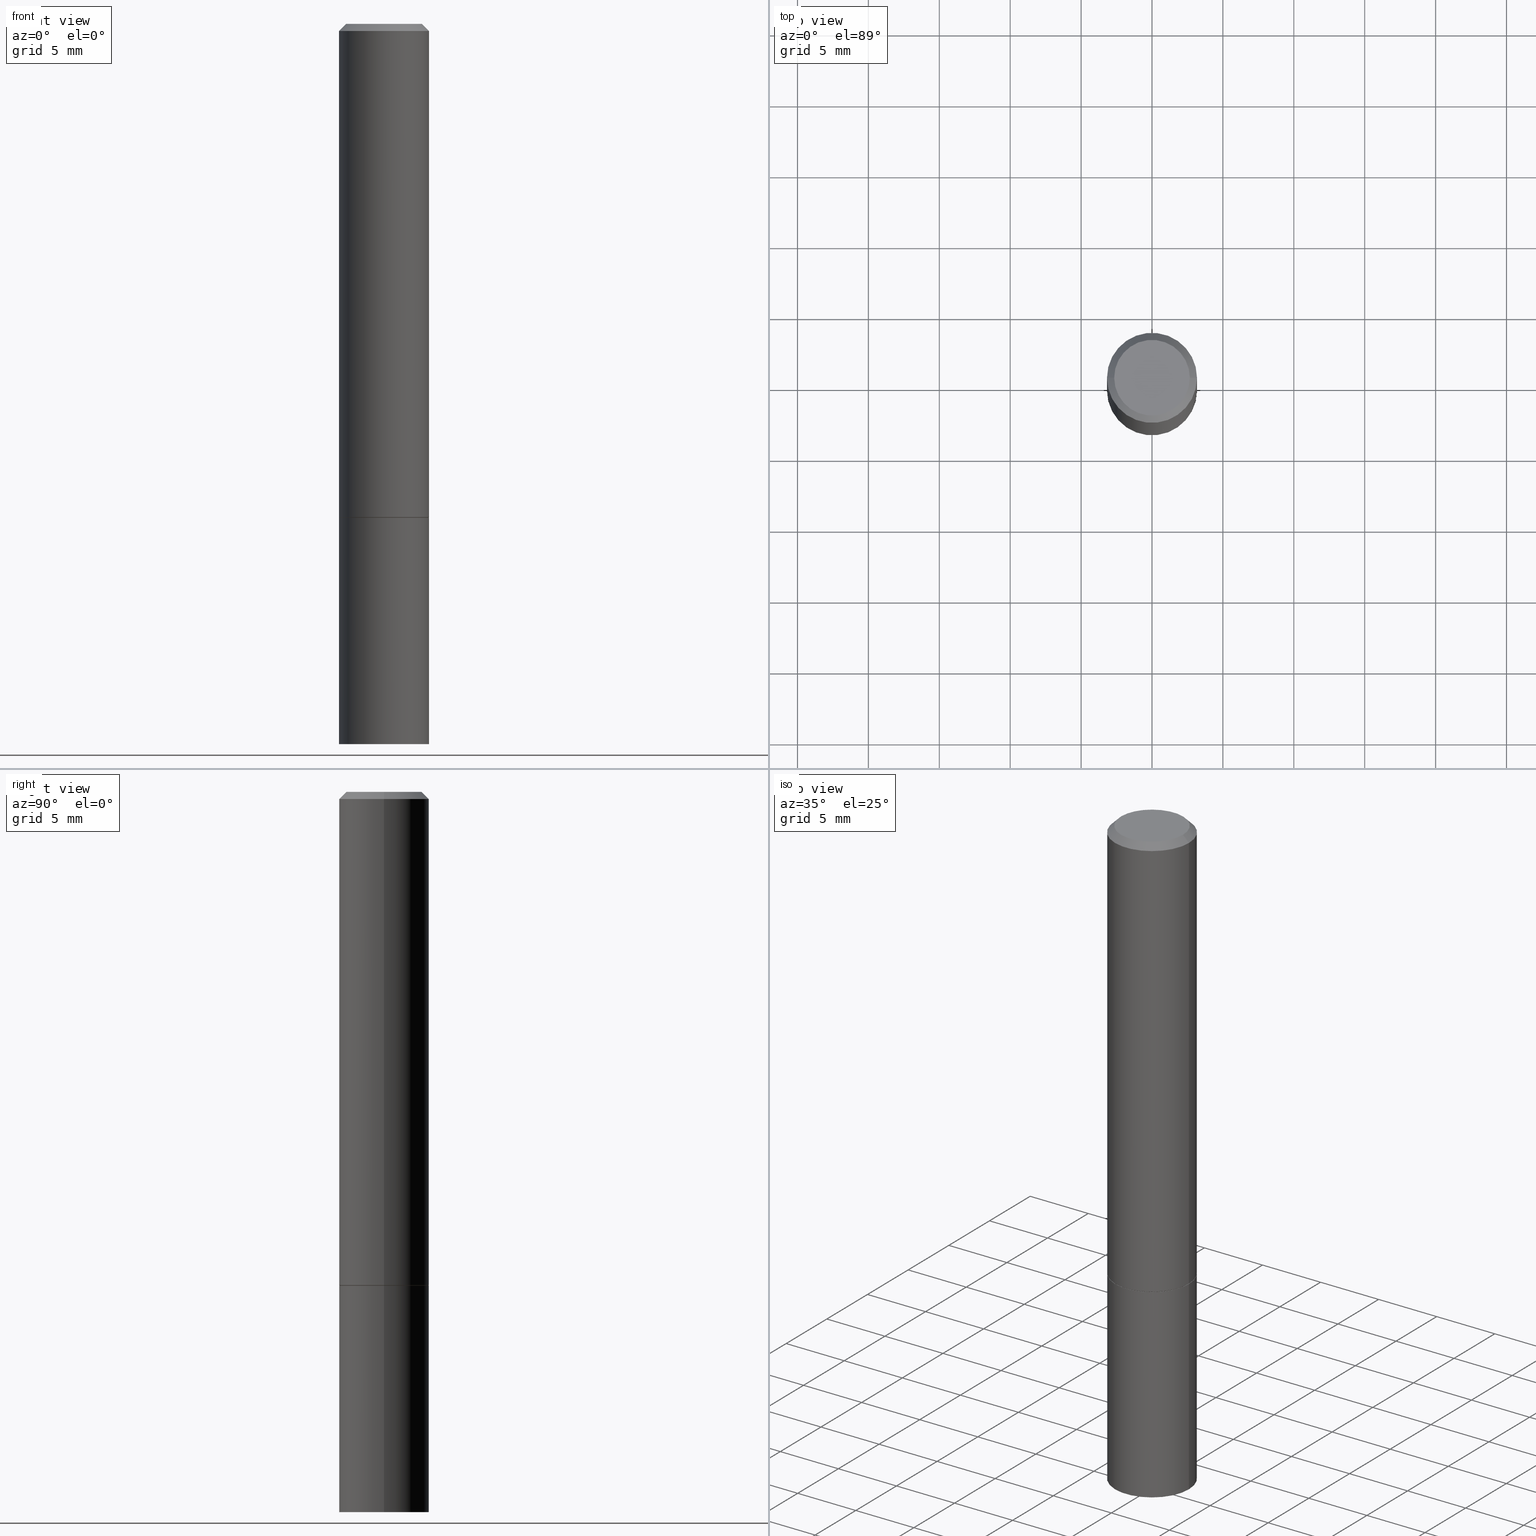
[diagram: canonical four-view strip — front | top / right | iso, engineering-drawing reading convention]
A machine part, canonical four-view strip (front | top / right | iso — engineering-drawing reading convention). The complete STEP part file that produces these views, byte-faithful:
ISO-10303-21;
HEADER;
FILE_DESCRIPTION (( 'STEP AP203' ),
    '1' );
FILE_NAME ('32674.STEP',
    '2022-04-27T15:46:56',
    ( '' ),
    ( '' ),
    'SwSTEP 2.0',
    'SolidWorks 2022',
    '' );
FILE_SCHEMA (( 'CONFIG_CONTROL_DESIGN' ));
ENDSEC;

DATA;
#1 = ADVANCED_FACE ( 'NONE', ( #67 ), #182, .F. ) ;
#2 =( CONVERSION_BASED_UNIT ( 'INCH', #279 ) LENGTH_UNIT ( ) NAMED_UNIT ( #219 ) );
#3 = ADVANCED_FACE ( 'NONE', ( #267 ), #346, .T. ) ;
#4 = LINE ( 'NONE', #251, #212 ) ;
#5 = LOCAL_TIME ( 11, 46, 56.00000000000000000, #9 ) ;
#6 = DATE_TIME_ROLE ( 'creation_date' ) ;
#7 = DIRECTION ( 'NONE',  ( 2.438088387897960049E-29, -3.491481338843145188E-15, -1.000000000000000000 ) ) ;
#8 = CARTESIAN_POINT ( 'NONE',  ( 3.350292264473637048E-29, -4.783329434215109105E-15, -1.369999999999999885 ) ) ;
#9 = COORDINATED_UNIVERSAL_TIME_OFFSET ( 5, 0, .BEHIND. ) ;
#10 = ORIENTED_EDGE ( 'NONE', *, *, #92, .T. ) ;
#11 = DIRECTION ( 'NONE',  ( 1.000000000000000000, -6.982962677686270655E-15, 0.000000000000000000 ) ) ;
#12 = DATE_AND_TIME ( #177, #43 ) ;
#13 = VERTEX_POINT ( 'NONE', #61 ) ;
#14 = CIRCLE ( 'NONE', #130, 0.1049999999999998296 ) ;
#15 = AXIS2_PLACEMENT_3D ( 'NONE', #286, #103, #106 ) ;
#16 = ADVANCED_FACE ( 'NONE', ( #153 ), #256, .T. ) ;
#17 = DIRECTION ( 'NONE',  ( 1.000000000000000000, -6.982962677686270655E-15, 0.000000000000000000 ) ) ;
#18 = CC_DESIGN_DATE_AND_TIME_ASSIGNMENT ( #308, #135, ( #163 ) ) ;
#19 = CARTESIAN_POINT ( 'NONE',  ( 0.1250000000000006661, -7.840524927407736555E-15, -2.000000000000000000 ) ) ;
#20 = PRODUCT_DEFINITION_FORMATION_WITH_SPECIFIED_SOURCE ( 'ANY', '', #74, .NOT_KNOWN. ) ;
#21 = CIRCLE ( 'NONE', #283, 0.1250000000000000000 ) ;
#22 = FACE_OUTER_BOUND ( 'NONE', #91, .T. ) ;
#23 = ORIENTED_EDGE ( 'NONE', *, *, #322, .T. ) ;
#24 = UNCERTAINTY_MEASURE_WITH_UNIT (LENGTH_MEASURE( 1.000000000000000082E-05 ), #2, 'distance_accuracy_value', 'NONE');
#25 = EDGE_CURVE ( 'NONE', #173, #191, #95, .T. ) ;
#26 = CARTESIAN_POINT ( 'NONE',  ( 4.885835609456701419E-29, -6.975009967166883090E-15, -1.997818116883973705 ) ) ;
#27 = ORIENTED_EDGE ( 'NONE', *, *, #322, .F. ) ;
#28 = DIRECTION ( 'NONE',  ( -2.445468806185136597E-29, 3.491481338843145583E-15, 1.000000000000000000 ) ) ;
#29 = CARTESIAN_POINT ( 'NONE',  ( 8.728703347108166682E-16, 0.1249999999999952122, -1.371000000000000441 ) ) ;
#30 = ORIENTED_EDGE ( 'NONE', *, *, #269, .F. ) ;
#31 = CARTESIAN_POINT ( 'NONE',  ( 4.890937612370273194E-29, -6.982962677686291165E-15, -2.000000000000000000 ) ) ;
#32 = DIRECTION ( 'NONE',  ( 0.7071067811865469066, -7.319954787623254468E-15, -0.7071067811865481278 ) ) ;
#33 = DIRECTION ( 'NONE',  ( 1.000000000000000000, -6.982962677686270655E-15, 0.000000000000000000 ) ) ;
#34 =( NAMED_UNIT ( * ) PLANE_ANGLE_UNIT ( ) SI_UNIT ( $, .RADIAN. ) );
#35 = ORIENTED_EDGE ( 'NONE', *, *, #68, .F. ) ;
#36 = CARTESIAN_POINT ( 'NONE',  ( 0.000000000000000000, 0.000000000000000000, 0.000000000000000000 ) ) ;
#37 = EDGE_CURVE ( 'NONE', #148, #221, #339, .T. ) ;
#38 = APPROVAL_PERSON_ORGANIZATION ( #42, #278, #257 ) ;
#39 = AXIS2_PLACEMENT_3D ( 'NONE', #319, #57, #186 ) ;
#40 = EDGE_CURVE ( 'NONE', #117, #191, #370, .T. ) ;
#41 = FACE_OUTER_BOUND ( 'NONE', #239, .T. ) ;
#42 = PERSON_AND_ORGANIZATION ( #75, #201 ) ;
#43 = LOCAL_TIME ( 11, 46, 56.00000000000000000, #307 ) ;
#44 = DIRECTION ( 'NONE',  ( 1.000000000000000000, -6.982962677686266711E-15, 4.876176775795935793E-29 ) ) ;
#45 = ORIENTED_EDGE ( 'NONE', *, *, #326, .T. ) ;
#46 = LINE ( 'NONE', #51, #56 ) ;
#47 = CALENDAR_DATE ( 2022, 27, 4 ) ;
#48 = ORIENTED_EDGE ( 'NONE', *, *, #260, .T. ) ;
#49 = ADVANCED_FACE ( 'NONE', ( #181 ), #105, .F. ) ;
#50 = EDGE_LOOP ( 'NONE', ( #237, #373 ) ) ;
#51 = CARTESIAN_POINT ( 'NONE',  ( 0.1239999999999999991, -5.652708287587050226E-15, -1.370999999999999996 ) ) ;
#52 = ADVANCED_FACE ( 'NONE', ( #22 ), #121, .T. ) ;
#53 = ORIENTED_EDGE ( 'NONE', *, *, #40, .T. ) ;
#54 = CONICAL_SURFACE ( 'NONE', #276, 0.1239999999999999991, 0.7853981633974141952 ) ;
#55 = CC_DESIGN_SECURITY_CLASSIFICATION ( #163, ( #20 ) ) ;
#56 = VECTOR ( 'NONE', #176, 39.37007874015748854 ) ;
#57 = DIRECTION ( 'NONE',  ( 2.445468806185136597E-29, -3.491481338843145583E-15, -1.000000000000000000 ) ) ;
#58 = DIRECTION ( 'NONE',  ( -2.438088387897960049E-29, 3.491481338843145188E-15, 1.000000000000000000 ) ) ;
#59 = CARTESIAN_POINT ( 'NONE',  ( 3.352737733279822090E-29, -4.786820915553952901E-15, -1.370999999999999996 ) ) ;
#60 = DIRECTION ( 'NONE',  ( -2.445468806185136597E-29, 3.491481338843145583E-15, 1.000000000000000000 ) ) ;
#61 = CARTESIAN_POINT ( 'NONE',  ( -0.1250000000000000000, -4.996713376919996012E-15, -1.370999999999999996 ) ) ;
#62 = CARTESIAN_POINT ( 'NONE',  ( 0.1250000000000000000, -5.656199768925892444E-15, -1.369999999999999885 ) ) ;
#63 = DIRECTION ( 'NONE',  ( 2.438088387897960049E-29, -3.491481338843145188E-15, -1.000000000000000000 ) ) ;
#64 = ORIENTED_EDGE ( 'NONE', *, *, #213, .F. ) ;
#65 = DIRECTION ( 'NONE',  ( -0.7071067811865469066, 2.468850131082250355E-15, -0.7071067811865481278 ) ) ;
#66 = CC_DESIGN_APPROVAL ( #224, ( #20 ) ) ;
#67 = FACE_OUTER_BOUND ( 'NONE', #50, .T. ) ;
#68 = EDGE_CURVE ( 'NONE', #86, #117, #190, .T. ) ;
#69 = CC_DESIGN_PERSON_AND_ORGANIZATION_ASSIGNMENT ( #310, #172, ( #163 ) ) ;
#70 = AXIS2_PLACEMENT_3D ( 'NONE', #362, #379, #324 ) ;
#71 = CARTESIAN_POINT ( 'NONE',  ( -0.1250000000000000000, 8.881784197001252323E-16, -6.148668862818632227E-30 ) ) ;
#72 = CC_DESIGN_DATE_AND_TIME_ASSIGNMENT ( #83, #6, ( #138 ) ) ;
#73 = CIRCLE ( 'NONE', #167, 0.1250000000000000000 ) ;
#74 = PRODUCT ( '32674', '32674', '', ( #137 ) ) ;
#75 = PERSON ( 'UNSPECIFIED', 'UNSPECIFIED', 'UNSPECIFIED', ('UNSPECIFIED'), ('UNSPECIFIED'), ('UNSPECIFIED') ) ;
#76 = COORDINATED_UNIVERSAL_TIME_OFFSET ( 5, 0, .BEHIND. ) ;
#77 =( LENGTH_UNIT ( ) NAMED_UNIT ( * ) SI_UNIT ( $, .METRE. ) );
#78 = PERSON_AND_ORGANIZATION_ROLE ( 'creator' ) ;
#79 = DIRECTION ( 'NONE',  ( 0.000000000000000000, 0.000000000000000000, 1.000000000000000000 ) ) ;
#80 = ORIENTED_EDGE ( 'NONE', *, *, #92, .F. ) ;
#81 = MANIFOLD_SOLID_BREP ( 'Body-Move/Copy2[1]', #129 ) ;
#82 = DIRECTION ( 'NONE',  ( -2.445468806185136597E-29, 3.491481338843145583E-15, 1.000000000000000000 ) ) ;
#83 = DATE_AND_TIME ( #226, #389 ) ;
#84 = CC_DESIGN_PERSON_AND_ORGANIZATION_ASSIGNMENT ( #372, #250, ( #20 ) ) ;
#85 = PERSON_AND_ORGANIZATION ( #75, #201 ) ;
#86 = VERTEX_POINT ( 'NONE', #295 ) ;
#87 = DIRECTION ( 'NONE',  ( 1.000000000000000000, -6.982962677686270655E-15, 0.000000000000000000 ) ) ;
#88 = EDGE_LOOP ( 'NONE', ( #10, #316 ) ) ;
#89 = AXIS2_PLACEMENT_3D ( 'NONE', #114, #60, #87 ) ;
#90 = CARTESIAN_POINT ( 'NONE',  ( 3.352737733279822090E-29, -4.786820915553952901E-15, -1.370999999999999996 ) ) ;
#91 = EDGE_LOOP ( 'NONE', ( #45, #48, #80, #378 ) ) ;
#92 = EDGE_CURVE ( 'NONE', #126, #13, #140, .T. ) ;
#93 = LINE ( 'NONE', #301, #317 ) ;
#94 = DIRECTION ( 'NONE',  ( 1.000000000000000000, -6.982962677686266711E-15, 4.876176775795935793E-29 ) ) ;
#95 = LINE ( 'NONE', #218, #277 ) ;
#96 = DIRECTION ( 'NONE',  ( 1.000000000000000000, -6.982962677686266711E-15, 4.876176775795935793E-29 ) ) ;
#97 = ORIENTED_EDGE ( 'NONE', *, *, #260, .F. ) ;
#98 = CC_DESIGN_APPROVAL ( #278, ( #138 ) ) ;
#99 = DIRECTION ( 'NONE',  ( 2.445468806185136597E-29, -3.491481338843145583E-15, -1.000000000000000000 ) ) ;
#100 = CIRCLE ( 'NONE', #332, 0.1249999999999998335 ) ;
#101 = EDGE_CURVE ( 'NONE', #145, #126, #377, .T. ) ;
#102 = VECTOR ( 'NONE', #262, 39.37007874015748143 ) ;
#103 = DIRECTION ( 'NONE',  ( -2.445468806185136597E-29, 3.491481338843145583E-15, 1.000000000000000000 ) ) ;
#104 = CALENDAR_DATE ( 2022, 27, 4 ) ;
#105 = CONICAL_SURFACE ( 'NONE', #164, 2255.510300424507022, 1.553343034274960344 ) ;
#106 = DIRECTION ( 'NONE',  ( 1.000000000000000000, -6.982962677686270655E-15, 0.000000000000000000 ) ) ;
#107 = ADVANCED_FACE ( 'NONE', ( #354 ), #361, .F. ) ;
#108 = DIRECTION ( 'NONE',  ( -2.445468806185136597E-29, 3.491481338843145583E-15, 1.000000000000000000 ) ) ;
#109 = DATE_AND_TIME ( #131, #146 ) ;
#110 = CARTESIAN_POINT ( 'NONE',  ( 4.890937612370273194E-29, -6.982962677686291165E-15, -2.000000000000000000 ) ) ;
#111 = CARTESIAN_POINT ( 'NONE',  ( 0.000000000000000000, 0.000000000000000000, 0.000000000000000000 ) ) ;
#112 = AXIS2_PLACEMENT_3D ( 'NONE', #31, #325, #127 ) ;
#113 = DIRECTION ( 'NONE',  ( -2.445468806185136597E-29, 3.491481338843145583E-15, 1.000000000000000000 ) ) ;
#114 = CARTESIAN_POINT ( 'NONE',  ( 3.352737733279822090E-29, -4.786820915553952901E-15, -1.370999999999999996 ) ) ;
#115 = ORIENTED_EDGE ( 'NONE', *, *, #149, .F. ) ;
#116 = ADVANCED_FACE ( 'NONE', ( #210 ), #120, .T. ) ;
#117 = VERTEX_POINT ( 'NONE', #291 ) ;
#118 =( GEOMETRIC_REPRESENTATION_CONTEXT ( 3 ) GLOBAL_UNCERTAINTY_ASSIGNED_CONTEXT ( ( #24 ) ) GLOBAL_UNIT_ASSIGNED_CONTEXT ( ( #2, #34, #368 ) ) REPRESENTATION_CONTEXT ( 'NONE', 'WORKASPACE' ) );
#119 = DIRECTION ( 'NONE',  ( -2.445468806185136877E-29, 3.491481338843145188E-15, 1.000000000000000000 ) ) ;
#120 = CONICAL_SURFACE ( 'NONE', #39, 0.1249999999999998335, 0.7853981633974473908 ) ;
#121 = CYLINDRICAL_SURFACE ( 'NONE', #247, 0.1250000000000000000 ) ;
#122 = EDGE_LOOP ( 'NONE', ( #254, #209, #289, #240 ) ) ;
#123 = CC_DESIGN_PERSON_AND_ORGANIZATION_ASSIGNMENT ( #227, #78, ( #138 ) ) ;
#124 = DIRECTION ( 'NONE',  ( -2.445468806185136597E-29, 3.491481338843145583E-15, 1.000000000000000000 ) ) ;
#125 = VERTEX_POINT ( 'NONE', #26 ) ;
#126 = VERTEX_POINT ( 'NONE', #266 ) ;
#127 = DIRECTION ( 'NONE',  ( 1.000000000000000000, -6.982962677686270655E-15, 0.000000000000000000 ) ) ;
#128 = CONICAL_SURFACE ( 'NONE', #303, 2255.510300424507022, 1.553343034274960344 ) ;
#129 = CLOSED_SHELL ( 'NONE', ( #52, #252, #49, #293, #107 ) ) ;
#130 = AXIS2_PLACEMENT_3D ( 'NONE', #192, #381, #388 ) ;
#131 = CALENDAR_DATE ( 2022, 27, 4 ) ;
#132 = PLANE ( 'NONE',  #352 ) ;
#133 = AXIS2_PLACEMENT_3D ( 'NONE', #320, #58, #187 ) ;
#134 = APPLICATION_PROTOCOL_DEFINITION ( 'international standard', 'config_control_design', 1994, #198 ) ;
#135 = DATE_TIME_ROLE ( 'classification_date' ) ;
#136 = DIRECTION ( 'NONE',  ( -2.445468806185136597E-29, 3.491481338843145583E-15, 1.000000000000000000 ) ) ;
#137 = MECHANICAL_CONTEXT ( 'NONE', #198, 'mechanical' ) ;
#138 = PRODUCT_DEFINITION ( 'UNKNOWN', '', #20, #166 ) ;
#139 = VECTOR ( 'NONE', #302, 39.37007874015748854 ) ;
#140 = CIRCLE ( 'NONE', #175, 0.1250000000000000000 ) ;
#141 = APPROVAL_STATUS ( 'not_yet_approved' ) ;
#142 = CARTESIAN_POINT ( 'NONE',  ( 0.1049999999999998296, -8.238720831321564811E-16, 5.444276250344142358E-30 ) ) ;
#143 = ADVANCED_BREP_SHAPE_REPRESENTATION ( '32674', ( #81, #216, #338 ), #118 ) ;
#144 = DIRECTION ( 'NONE',  ( 1.000000000000000000, -6.982962677686262766E-15, 0.000000000000000000 ) ) ;
#145 = VERTEX_POINT ( 'NONE', #19 ) ;
#146 = LOCAL_TIME ( 11, 46, 56.00000000000000000, #231 ) ;
#147 = CARTESIAN_POINT ( 'NONE',  ( -0.1249999999999999167, 8.881784197001246407E-16, -6.148668862818628023E-30 ) ) ;
#148 = VERTEX_POINT ( 'NONE', #374 ) ;
#149 = EDGE_CURVE ( 'NONE', #178, #173, #390, .T. ) ;
#150 = ORIENTED_EDGE ( 'NONE', *, *, #37, .T. ) ;
#151 = CARTESIAN_POINT ( 'NONE',  ( -0.1239999999999999991, -3.905747923211428677E-15, -1.370999999999999996 ) ) ;
#152 = DIRECTION ( 'NONE',  ( -1.000000000000000000, 6.982962677686265922E-15, -4.876176775795935793E-29 ) ) ;
#153 = FACE_OUTER_BOUND ( 'NONE', #159, .T. ) ;
#154 = EDGE_CURVE ( 'NONE', #328, #191, #234, .T. ) ;
#155 = CIRCLE ( 'NONE', #112, 0.1250000000000000000 ) ;
#156 = CYLINDRICAL_SURFACE ( 'NONE', #162, 0.1249999999999999167 ) ;
#157 = APPROVAL ( #284, 'UNSPECIFIED' ) ;
#158 = EDGE_LOOP ( 'NONE', ( #64, #193, #311 ) ) ;
#159 = EDGE_LOOP ( 'NONE', ( #292, #115, #383, #53 ) ) ;
#160 = DIRECTION ( 'NONE',  ( 1.000000000000000000, -6.982962677686266711E-15, 0.000000000000000000 ) ) ;
#161 = APPLICATION_CONTEXT ( 'configuration controlled 3d designs of mechanical parts and assemblies' ) ;
#162 = AXIS2_PLACEMENT_3D ( 'NONE', #36, #272, #364 ) ;
#163 = SECURITY_CLASSIFICATION ( '', '', #351 ) ;
#164 = AXIS2_PLACEMENT_3D ( 'NONE', #270, #357, #382 ) ;
#165 = EDGE_CURVE ( 'NONE', #148, #328, #46, .T. ) ;
#166 = DESIGN_CONTEXT ( 'detailed design', #161, 'design' ) ;
#167 = AXIS2_PLACEMENT_3D ( 'NONE', #248, #365, #323 ) ;
#168 = APPROVAL_ROLE ( '' ) ;
#169 = ORIENTED_EDGE ( 'NONE', *, *, #380, .F. ) ;
#170 = PERSON_AND_ORGANIZATION ( #75, #201 ) ;
#171 = ORIENTED_EDGE ( 'NONE', *, *, #149, .T. ) ;
#172 = PERSON_AND_ORGANIZATION_ROLE ( 'classification_officer' ) ;
#173 = VERTEX_POINT ( 'NONE', #142 ) ;
#174 = CIRCLE ( 'NONE', #376, 0.1250000000000000000 ) ;
#175 = AXIS2_PLACEMENT_3D ( 'NONE', #90, #263, #144 ) ;
#176 = DIRECTION ( 'NONE',  ( 0.7071067811865232589, -2.468850131082003836E-15, 0.7071067811865715536 ) ) ;
#177 = CALENDAR_DATE ( 2022, 27, 4 ) ;
#178 = VERTEX_POINT ( 'NONE', #230 ) ;
#179 = CARTESIAN_POINT ( 'NONE',  ( 0.1249999999999998335, -9.273918764983031658E-16, -0.02000000000000002470 ) ) ;
#180 = EDGE_LOOP ( 'NONE', ( #97, #265, #387, #355 ) ) ;
#181 = FACE_OUTER_BOUND ( 'NONE', #158, .T. ) ;
#182 = PLANE ( 'NONE',  #133 ) ;
#183 = EDGE_CURVE ( 'NONE', #328, #86, #321, .T. ) ;
#184 = LOCAL_TIME ( 11, 46, 56.00000000000000000, #76 ) ;
#185 = AXIS2_PLACEMENT_3D ( 'NONE', #264, #288, #315 ) ;
#186 = DIRECTION ( 'NONE',  ( -1.000000000000000000, 6.982962677686266711E-15, 0.000000000000000000 ) ) ;
#187 = DIRECTION ( 'NONE',  ( 1.000000000000000000, -6.982962677686265922E-15, 4.876176775795935793E-29 ) ) ;
#188 = LINE ( 'NONE', #151, #139 ) ;
#189 = EDGE_CURVE ( 'NONE', #221, #148, #371, .T. ) ;
#190 = LINE ( 'NONE', #147, #242 ) ;
#191 = VERTEX_POINT ( 'NONE', #179 ) ;
#192 = CARTESIAN_POINT ( 'NONE',  ( 0.000000000000000000, 0.000000000000000000, 0.000000000000000000 ) ) ;
#193 = ORIENTED_EDGE ( 'NONE', *, *, #380, .T. ) ;
#194 = ORIENTED_EDGE ( 'NONE', *, *, #68, .T. ) ;
#195 = CARTESIAN_POINT ( 'NONE',  ( 4.890937612370279289E-31, -6.982962677686299005E-17, -0.02000000000000002470 ) ) ;
#196 = CARTESIAN_POINT ( 'NONE',  ( 0.000000000000000000, 0.000000000000000000, 0.000000000000000000 ) ) ;
#197 = AXIS2_PLACEMENT_3D ( 'NONE', #275, #124, #96 ) ;
#198 = APPLICATION_CONTEXT ( 'configuration controlled 3d designs of mechanical parts and assemblies' ) ;
#199 = ADVANCED_FACE ( 'NONE', ( #342 ), #54, .T. ) ;
#200 = DIRECTION ( 'NONE',  ( -1.000000000000000000, 6.982962677686265922E-15, -4.876176775795935793E-29 ) ) ;
#201 = ORGANIZATION ( 'UNSPECIFIED', 'UNSPECIFIED', '' ) ;
#202 = APPROVAL_STATUS ( 'not_yet_approved' ) ;
#203 = CARTESIAN_POINT ( 'NONE',  ( 3.352737733279822090E-29, -4.786820915553952901E-15, -1.370999999999999996 ) ) ;
#204 = ORIENTED_EDGE ( 'NONE', *, *, #165, .F. ) ;
#205 = DATE_AND_TIME ( #47, #184 ) ;
#206 = ORIENTED_EDGE ( 'NONE', *, *, #341, .T. ) ;
#207 = SHAPE_DEFINITION_REPRESENTATION ( #347, #143 ) ;
#208 = CARTESIAN_POINT ( 'NONE',  ( -0.1239999999999999991, -3.900449468863206275E-15, -1.370999999999999996 ) ) ;
#209 = ORIENTED_EDGE ( 'NONE', *, *, #189, .T. ) ;
#210 = FACE_OUTER_BOUND ( 'NONE', #211, .T. ) ;
#211 = EDGE_LOOP ( 'NONE', ( #27, #258, #353, #298 ) ) ;
#212 = VECTOR ( 'NONE', #367, 39.37007874015748143 ) ;
#213 = EDGE_CURVE ( 'NONE', #125, #145, #233, .T. ) ;
#214 = DIRECTION ( 'NONE',  ( -2.445468806185136877E-29, 3.491481338843145188E-15, 1.000000000000000000 ) ) ;
#215 = ORIENTED_EDGE ( 'NONE', *, *, #213, .T. ) ;
#216 = MANIFOLD_SOLID_BREP ( 'Body-Move/Copy2[2]', #340 ) ;
#217 = CARTESIAN_POINT ( 'NONE',  ( 0.1250000000000000000, -8.728703347107833388E-16, 6.095220969744919741E-30 ) ) ;
#218 = CARTESIAN_POINT ( 'NONE',  ( 0.1249999999999998335, -9.273918764983031658E-16, -0.02000000000000002470 ) ) ;
#219 = DIMENSIONAL_EXPONENTS ( 1.000000000000000000, 0.000000000000000000, 0.000000000000000000, 0.000000000000000000, 0.000000000000000000, 0.000000000000000000, 0.000000000000000000 ) ;
#220 = DIRECTION ( 'NONE',  ( 1.000000000000000000, -6.982962677686266711E-15, 4.876176775795935793E-29 ) ) ;
#221 = VERTEX_POINT ( 'NONE', #208 ) ;
#222 = CARTESIAN_POINT ( 'NONE',  ( 1.011639013413790269E-27, -1.444352399035482740E-13, -41.36789685704145114 ) ) ;
#223 = FACE_OUTER_BOUND ( 'NONE', #246, .T. ) ;
#224 = APPROVAL ( #202, 'UNSPECIFIED' ) ;
#225 = CARTESIAN_POINT ( 'NONE',  ( 7.332110811570568410E-16, 0.1049999999999998296, -3.666055405785297517E-16 ) ) ;
#226 = CALENDAR_DATE ( 2022, 27, 4 ) ;
#227 = PERSON_AND_ORGANIZATION ( #75, #201 ) ;
#228 = APPROVAL_PERSON_ORGANIZATION ( #85, #157, #375 ) ;
#229 = AXIS2_PLACEMENT_3D ( 'NONE', #111, #108, #44 ) ;
#230 = CARTESIAN_POINT ( 'NONE',  ( -0.1049999999999998296, 7.681258945454879971E-16, -5.249639473182158869E-30 ) ) ;
#231 = COORDINATED_UNIVERSAL_TIME_OFFSET ( 5, 0, .BEHIND. ) ;
#232 = ORIENTED_EDGE ( 'NONE', *, *, #154, .T. ) ;
#233 = LINE ( 'NONE', #348, #102 ) ;
#234 = LINE ( 'NONE', #312, #336 ) ;
#235 = APPROVAL_DATE_TIME ( #109, #157 ) ;
#236 = DIRECTION ( 'NONE',  ( -2.445468806185136877E-29, 3.491481338843145188E-15, 1.000000000000000000 ) ) ;
#237 = ORIENTED_EDGE ( 'NONE', *, *, #37, .F. ) ;
#238 = CARTESIAN_POINT ( 'NONE',  ( 0.000000000000000000, 0.000000000000000000, 0.000000000000000000 ) ) ;
#239 = EDGE_LOOP ( 'NONE', ( #171, #23 ) ) ;
#240 = ORIENTED_EDGE ( 'NONE', *, *, #341, .F. ) ;
#241 = CC_DESIGN_APPROVAL ( #157, ( #163 ) ) ;
#242 = VECTOR ( 'NONE', #243, 39.37007874015748143 ) ;
#243 = DIRECTION ( 'NONE',  ( -2.445468806185136877E-29, 3.491481338843145188E-15, 1.000000000000000000 ) ) ;
#244 = DIRECTION ( 'NONE',  ( -1.000000000000000000, 6.982962677686266711E-15, 0.000000000000000000 ) ) ;
#245 = FACE_OUTER_BOUND ( 'NONE', #331, .T. ) ;
#246 = EDGE_LOOP ( 'NONE', ( #169, #215, #300 ) ) ;
#247 = AXIS2_PLACEMENT_3D ( 'NONE', #238, #327, #94 ) ;
#248 = CARTESIAN_POINT ( 'NONE',  ( 3.350292264473637048E-29, -4.783329434215109105E-15, -1.369999999999999885 ) ) ;
#249 = ADVANCED_FACE ( 'NONE', ( #314 ), #156, .T. ) ;
#250 = PERSON_AND_ORGANIZATION_ROLE ( 'creator' ) ;
#251 = CARTESIAN_POINT ( 'NONE',  ( -3.347063362159945390E-19, -6.975344673503147681E-15, -1.997818116883973705 ) ) ;
#252 = ADVANCED_FACE ( 'NONE', ( #223 ), #128, .F. ) ;
#253 = PERSON_AND_ORGANIZATION ( #75, #201 ) ;
#254 = ORIENTED_EDGE ( 'NONE', *, *, #335, .F. ) ;
#255 = EDGE_CURVE ( 'NONE', #178, #117, #93, .T. ) ;
#256 = CONICAL_SURFACE ( 'NONE', #304, 0.1249999999999998335, 0.7853981633974473908 ) ;
#257 = APPROVAL_ROLE ( '' ) ;
#258 = ORIENTED_EDGE ( 'NONE', *, *, #25, .T. ) ;
#259 = CARTESIAN_POINT ( 'NONE',  ( 0.000000000000000000, 0.000000000000000000, 0.000000000000000000 ) ) ;
#260 = EDGE_CURVE ( 'NONE', #386, #13, #334, .T. ) ;
#261 = CC_DESIGN_PERSON_AND_ORGANIZATION_ASSIGNMENT ( #170, #287, ( #20 ) ) ;
#262 = DIRECTION ( 'NONE',  ( 0.9998476951563912696, -6.920387862090559512E-15, -0.01745240643727649296 ) ) ;
#263 = DIRECTION ( 'NONE',  ( -2.445468806185136597E-29, 3.491481338843145583E-15, 1.000000000000000000 ) ) ;
#264 = CARTESIAN_POINT ( 'NONE',  ( 4.890937612370279289E-31, -6.982962677686299005E-17, -0.02000000000000002470 ) ) ;
#265 = ORIENTED_EDGE ( 'NONE', *, *, #360, .T. ) ;
#266 = CARTESIAN_POINT ( 'NONE',  ( 0.1250000000000000000, -5.659691250264735451E-15, -1.370999999999999996 ) ) ;
#267 = FACE_OUTER_BOUND ( 'NONE', #344, .T. ) ;
#268 = FACE_OUTER_BOUND ( 'NONE', #180, .T. ) ;
#269 = EDGE_CURVE ( 'NONE', #191, #117, #100, .T. ) ;
#270 = CARTESIAN_POINT ( 'NONE',  ( 1.011639013413790269E-27, -1.444352399035482740E-13, -41.36789685704145114 ) ) ;
#271 = DIRECTION ( 'NONE',  ( 2.445468806185136597E-29, -3.491481338843145583E-15, -1.000000000000000000 ) ) ;
#272 = DIRECTION ( 'NONE',  ( -2.445468806185136597E-29, 3.491481338843145583E-15, 1.000000000000000000 ) ) ;
#273 = ORIENTED_EDGE ( 'NONE', *, *, #183, .T. ) ;
#274 = ORIENTED_EDGE ( 'NONE', *, *, #154, .F. ) ;
#275 = CARTESIAN_POINT ( 'NONE',  ( 0.000000000000000000, 0.000000000000000000, 0.000000000000000000 ) ) ;
#276 = AXIS2_PLACEMENT_3D ( 'NONE', #203, #136, #17 ) ;
#277 = VECTOR ( 'NONE', #32, 39.37007874015748143 ) ;
#278 = APPROVAL ( #141, 'UNSPECIFIED' ) ;
#279 = LENGTH_MEASURE_WITH_UNIT ( LENGTH_MEASURE( 0.02539999999999999897 ), #77 );
#280 = APPROVAL_DATE_TIME ( #12, #278 ) ;
#281 = DIRECTION ( 'NONE',  ( 1.000000000000000000, 0.000000000000000000, 0.000000000000000000 ) ) ;
#282 = APPROVAL_DATE_TIME ( #205, #224 ) ;
#283 = AXIS2_PLACEMENT_3D ( 'NONE', #59, #297, #385 ) ;
#284 = APPROVAL_STATUS ( 'not_yet_approved' ) ;
#285 = CC_DESIGN_PERSON_AND_ORGANIZATION_ASSIGNMENT ( #369, #343, ( #74 ) ) ;
#286 = CARTESIAN_POINT ( 'NONE',  ( 3.352737733279822090E-29, -4.786820915553952901E-15, -1.370999999999999996 ) ) ;
#287 = PERSON_AND_ORGANIZATION_ROLE ( 'design_supplier' ) ;
#288 = DIRECTION ( 'NONE',  ( -2.445468806185136597E-29, 3.491481338843145583E-15, 1.000000000000000000 ) ) ;
#289 = ORIENTED_EDGE ( 'NONE', *, *, #165, .T. ) ;
#290 = VECTOR ( 'NONE', #214, 39.37007874015748143 ) ;
#291 = CARTESIAN_POINT ( 'NONE',  ( -0.1249999999999998335, 8.030407079339191532E-16, -0.02000000000000002470 ) ) ;
#292 = ORIENTED_EDGE ( 'NONE', *, *, #25, .F. ) ;
#293 = ADVANCED_FACE ( 'NONE', ( #268 ), #294, .T. ) ;
#294 = CYLINDRICAL_SURFACE ( 'NONE', #197, 0.1250000000000000000 ) ;
#295 = CARTESIAN_POINT ( 'NONE',  ( -0.1250000000000000000, -1.538401110795859194E-15, -1.369999999999999885 ) ) ;
#296 = CARTESIAN_POINT ( 'NONE',  ( 4.890937612370279289E-31, -6.982962677686299005E-17, -0.02000000000000002470 ) ) ;
#297 = DIRECTION ( 'NONE',  ( -2.445468806185136597E-29, 3.491481338843145583E-15, 1.000000000000000000 ) ) ;
#298 = ORIENTED_EDGE ( 'NONE', *, *, #255, .F. ) ;
#299 = DIRECTION ( 'NONE',  ( -2.445468806185136597E-29, 3.491481338843145583E-15, 1.000000000000000000 ) ) ;
#300 = ORIENTED_EDGE ( 'NONE', *, *, #360, .F. ) ;
#301 = CARTESIAN_POINT ( 'NONE',  ( -0.1249999999999998335, 8.030407079339191532E-16, -0.02000000000000002470 ) ) ;
#302 = DIRECTION ( 'NONE',  ( -0.7071067811865232589, 7.493145998870265808E-15, 0.7071067811865715536 ) ) ;
#303 = AXIS2_PLACEMENT_3D ( 'NONE', #222, #99, #333 ) ;
#304 = AXIS2_PLACEMENT_3D ( 'NONE', #296, #271, #244 ) ;
#305 = APPLICATION_PROTOCOL_DEFINITION ( 'international standard', 'config_control_design', 1994, #161 ) ;
#306 = VECTOR ( 'NONE', #119, 39.37007874015748143 ) ;
#307 = COORDINATED_UNIVERSAL_TIME_OFFSET ( 5, 0, .BEHIND. ) ;
#308 = DATE_AND_TIME ( #104, #5 ) ;
#309 = ADVANCED_FACE ( 'NONE', ( #245 ), #330, .T. ) ;
#310 = PERSON_AND_ORGANIZATION ( #75, #201 ) ;
#311 = ORIENTED_EDGE ( 'NONE', *, *, #326, .F. ) ;
#312 = CARTESIAN_POINT ( 'NONE',  ( 0.1249999999999999167, -8.728703347107827472E-16, 6.095220969744915537E-30 ) ) ;
#313 = ORIENTED_EDGE ( 'NONE', *, *, #183, .F. ) ;
#314 = FACE_OUTER_BOUND ( 'NONE', #363, .T. ) ;
#315 = DIRECTION ( 'NONE',  ( 1.000000000000000000, -6.982962677686266711E-15, 0.000000000000000000 ) ) ;
#316 = ORIENTED_EDGE ( 'NONE', *, *, #345, .T. ) ;
#317 = VECTOR ( 'NONE', #65, 39.37007874015748143 ) ;
#318 = AXIS2_PLACEMENT_3D ( 'NONE', #196, #28, #220 ) ;
#319 = CARTESIAN_POINT ( 'NONE',  ( 4.890937612370279289E-31, -6.982962677686299005E-17, -0.02000000000000002470 ) ) ;
#320 = CARTESIAN_POINT ( 'NONE',  ( 3.352737733279822090E-29, -4.786820915553952901E-15, -1.370999999999999996 ) ) ;
#321 = CIRCLE ( 'NONE', #384, 0.1250000000000000000 ) ;
#322 = EDGE_CURVE ( 'NONE', #173, #178, #14, .T. ) ;
#323 = DIRECTION ( 'NONE',  ( 1.000000000000000000, -6.982962677686270655E-15, 0.000000000000000000 ) ) ;
#324 = DIRECTION ( 'NONE',  ( 1.000000000000000000, -6.982962677686270655E-15, 0.000000000000000000 ) ) ;
#325 = DIRECTION ( 'NONE',  ( -2.445468806185136597E-29, 3.491481338843145583E-15, 1.000000000000000000 ) ) ;
#326 = EDGE_CURVE ( 'NONE', #145, #386, #155, .T. ) ;
#327 = DIRECTION ( 'NONE',  ( -2.445468806185136597E-29, 3.491481338843145583E-15, 1.000000000000000000 ) ) ;
#328 = VERTEX_POINT ( 'NONE', #62 ) ;
#329 = PRODUCT_RELATED_PRODUCT_CATEGORY ( 'detail', '', ( #74 ) ) ;
#330 = CYLINDRICAL_SURFACE ( 'NONE', #318, 0.1249999999999999167 ) ;
#331 = EDGE_LOOP ( 'NONE', ( #273, #194, #30, #274 ) ) ;
#332 = AXIS2_PLACEMENT_3D ( 'NONE', #195, #299, #160 ) ;
#333 = DIRECTION ( 'NONE',  ( -1.000000000000000000, 6.982962677686266711E-15, 0.000000000000000000 ) ) ;
#334 = LINE ( 'NONE', #71, #306 ) ;
#335 = EDGE_CURVE ( 'NONE', #221, #86, #188, .T. ) ;
#336 = VECTOR ( 'NONE', #236, 39.37007874015748143 ) ;
#337 = CARTESIAN_POINT ( 'NONE',  ( -0.1250000000000006661, -6.110092342975502304E-15, -2.000000000000000000 ) ) ;
#338 = AXIS2_PLACEMENT_3D ( 'NONE', #259, #79, #281 ) ;
#339 = CIRCLE ( 'NONE', #89, 0.1239999999999999991 ) ;
#340 = CLOSED_SHELL ( 'NONE', ( #3, #309, #116, #16, #249, #199, #1, #366 ) ) ;
#341 = EDGE_CURVE ( 'NONE', #86, #328, #73, .T. ) ;
#342 = FACE_OUTER_BOUND ( 'NONE', #122, .T. ) ;
#343 = PERSON_AND_ORGANIZATION_ROLE ( 'design_owner' ) ;
#344 = EDGE_LOOP ( 'NONE', ( #150, #358, #313, #204 ) ) ;
#345 = EDGE_CURVE ( 'NONE', #13, #126, #21, .T. ) ;
#346 = CONICAL_SURFACE ( 'NONE', #70, 0.1239999999999999991, 0.7853981633974141952 ) ;
#347 = PRODUCT_DEFINITION_SHAPE ( 'NONE', 'NONE',  #138 ) ;
#348 = CARTESIAN_POINT ( 'NONE',  ( 3.347063363137065465E-19, -6.975344673503147681E-15, -1.997818116883973705 ) ) ;
#349 = COORDINATED_UNIVERSAL_TIME_OFFSET ( 5, 0, .BEHIND. ) ;
#350 = ORIENTED_EDGE ( 'NONE', *, *, #40, .F. ) ;
#351 = SECURITY_CLASSIFICATION_LEVEL ( 'unclassified' ) ;
#352 = AXIS2_PLACEMENT_3D ( 'NONE', #225, #7, #200 ) ;
#353 = ORIENTED_EDGE ( 'NONE', *, *, #269, .T. ) ;
#354 = FACE_OUTER_BOUND ( 'NONE', #88, .T. ) ;
#355 = ORIENTED_EDGE ( 'NONE', *, *, #345, .F. ) ;
#356 = APPROVAL_PERSON_ORGANIZATION ( #253, #224, #168 ) ;
#357 = DIRECTION ( 'NONE',  ( 2.445468806185136597E-29, -3.491481338843145583E-15, -1.000000000000000000 ) ) ;
#358 = ORIENTED_EDGE ( 'NONE', *, *, #335, .T. ) ;
#359 = AXIS2_PLACEMENT_3D ( 'NONE', #29, #63, #152 ) ;
#360 = EDGE_CURVE ( 'NONE', #386, #145, #174, .T. ) ;
#361 = PLANE ( 'NONE',  #359 ) ;
#362 = CARTESIAN_POINT ( 'NONE',  ( 3.352737733279822090E-29, -4.786820915553952901E-15, -1.370999999999999996 ) ) ;
#363 = EDGE_LOOP ( 'NONE', ( #35, #206, #232, #350 ) ) ;
#364 = DIRECTION ( 'NONE',  ( 1.000000000000000000, -6.982962677686266711E-15, 4.876176775795935793E-29 ) ) ;
#365 = DIRECTION ( 'NONE',  ( -2.445468806185136597E-29, 3.491481338843145583E-15, 1.000000000000000000 ) ) ;
#366 = ADVANCED_FACE ( 'NONE', ( #41 ), #132, .F. ) ;
#367 = DIRECTION ( 'NONE',  ( -0.9998476951563912696, 6.920964387254060733E-15, -0.01745240643727649296 ) ) ;
#368 =( NAMED_UNIT ( * ) SI_UNIT ( $, .STERADIAN. ) SOLID_ANGLE_UNIT ( ) );
#369 = PERSON_AND_ORGANIZATION ( #75, #201 ) ;
#370 = CIRCLE ( 'NONE', #185, 0.1249999999999998335 ) ;
#371 = CIRCLE ( 'NONE', #15, 0.1239999999999999991 ) ;
#372 = PERSON_AND_ORGANIZATION ( #75, #201 ) ;
#373 = ORIENTED_EDGE ( 'NONE', *, *, #189, .F. ) ;
#374 = CARTESIAN_POINT ( 'NONE',  ( 0.1239999999999999991, -5.652708287587050226E-15, -1.370999999999999996 ) ) ;
#375 = APPROVAL_ROLE ( '' ) ;
#376 = AXIS2_PLACEMENT_3D ( 'NONE', #110, #113, #33 ) ;
#377 = LINE ( 'NONE', #217, #290 ) ;
#378 = ORIENTED_EDGE ( 'NONE', *, *, #101, .F. ) ;
#379 = DIRECTION ( 'NONE',  ( -2.445468806185136597E-29, 3.491481338843145583E-15, 1.000000000000000000 ) ) ;
#380 = EDGE_CURVE ( 'NONE', #125, #386, #4, .T. ) ;
#381 = DIRECTION ( 'NONE',  ( -2.445468806185136597E-29, 3.491481338843145583E-15, 1.000000000000000000 ) ) ;
#382 = DIRECTION ( 'NONE',  ( -1.000000000000000000, 6.982962677686266711E-15, 0.000000000000000000 ) ) ;
#383 = ORIENTED_EDGE ( 'NONE', *, *, #255, .T. ) ;
#384 = AXIS2_PLACEMENT_3D ( 'NONE', #8, #82, #11 ) ;
#385 = DIRECTION ( 'NONE',  ( 1.000000000000000000, -6.982962677686262766E-15, 0.000000000000000000 ) ) ;
#386 = VERTEX_POINT ( 'NONE', #337 ) ;
#387 = ORIENTED_EDGE ( 'NONE', *, *, #101, .T. ) ;
#388 = DIRECTION ( 'NONE',  ( 1.000000000000000000, -6.982962677686266711E-15, 4.876176775795935793E-29 ) ) ;
#389 = LOCAL_TIME ( 11, 46, 56.00000000000000000, #349 ) ;
#390 = CIRCLE ( 'NONE', #229, 0.1049999999999998296 ) ;
ENDSEC;
END-ISO-10303-21;
